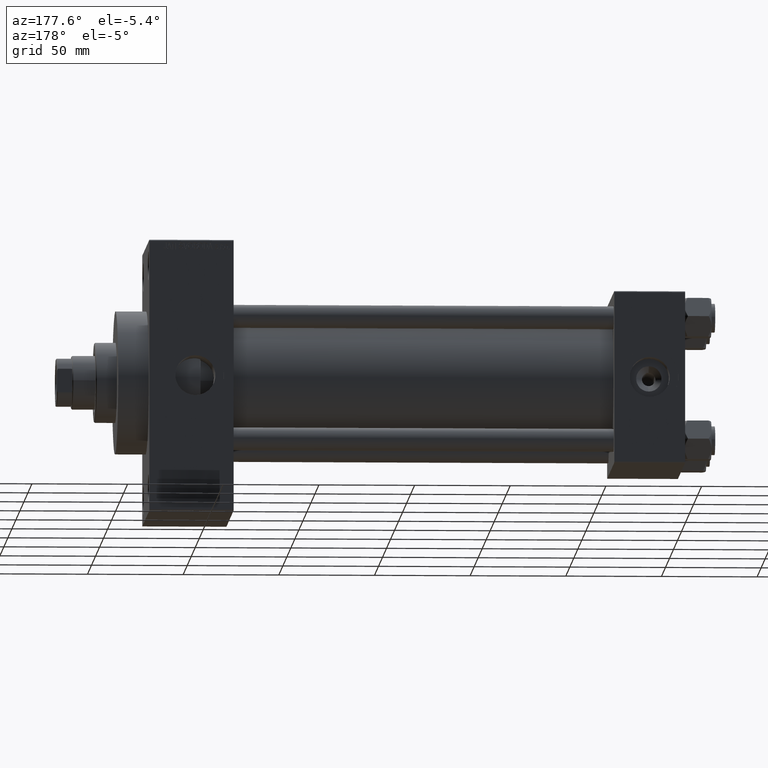
[diagram: clean part render]
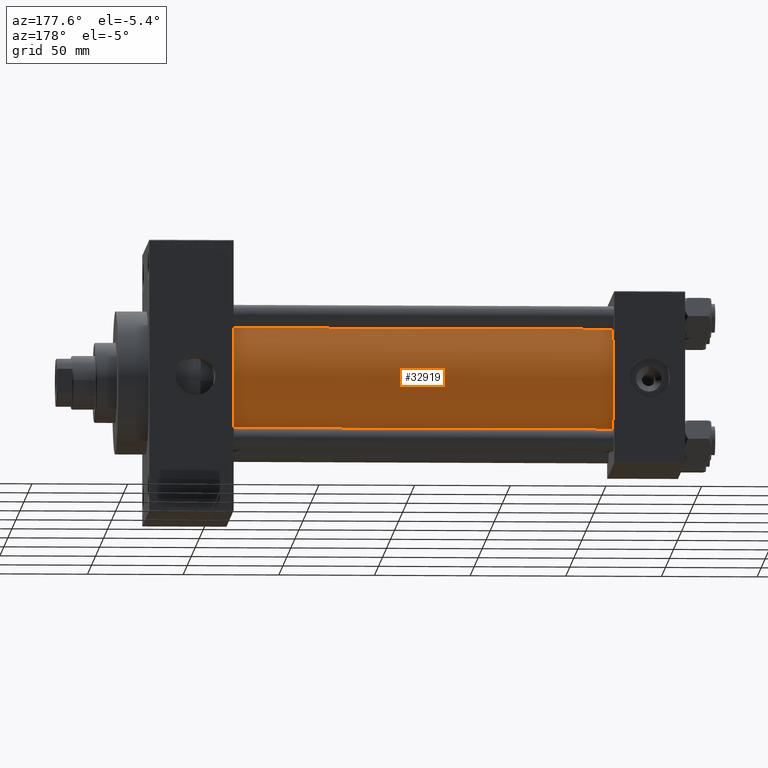
[diagram: same view with one face highlighted and labeled with its STEP entity id]
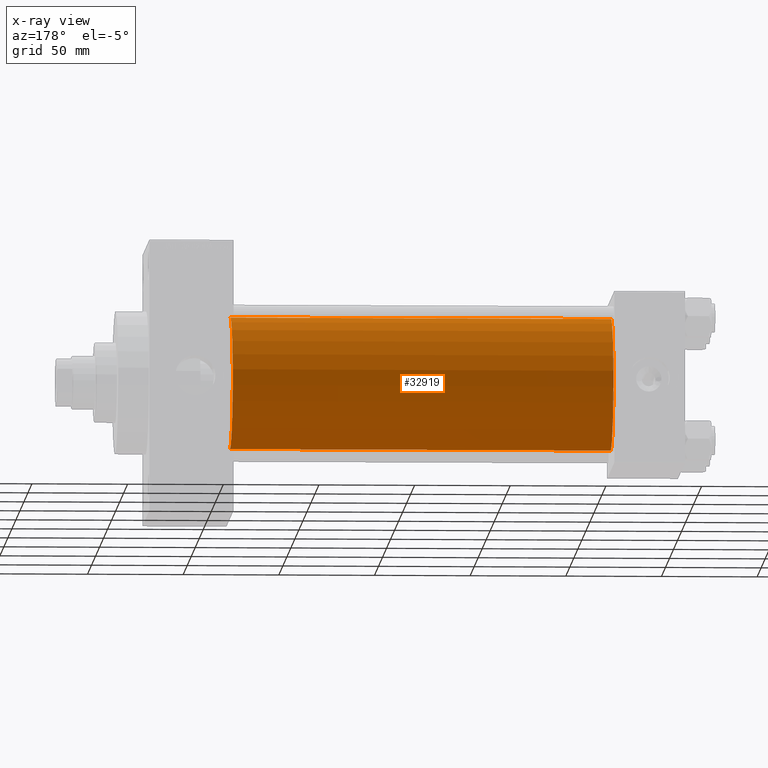
[diagram: x-ray of the same camera — body ghosted, the highlighted face saturated]
A machine part, auxiliary view. The second image highlights one B-rep face of the part: STEP entity #32919.
The next image is the same camera in x-ray: the body ghosted, the highlighted face saturated — about 0% of this face is hidden behind the body in this view.
In plain terms, the highlighted cylindrical surface (partial cylindrical patch) has radius 34.5 mm, axis along (-1, -0, -0).
Its self-contained STEP definition (entity closure, byte-faithful):
#1605 = DIRECTION ( 'NONE',  ( 0.000000000000000000, 0.000000000000000000, 1.000000000000000000 ) ) ;
#1861 = FACE_OUTER_BOUND ( 'NONE', #40286, .T. ) ;
#6982 = VERTEX_POINT ( 'NONE', #32561 ) ;
#7809 = ORIENTED_EDGE ( 'NONE', *, *, #43640, .F. ) ;
#7851 = CIRCLE ( 'NONE', #40625, 34.50000000000000000 ) ;
#9278 = ORIENTED_EDGE ( 'NONE', *, *, #38268, .F. ) ;
#9998 = ORIENTED_EDGE ( 'NONE', *, *, #27727, .T. ) ;
#10160 = LINE ( 'NONE', #17778, #39454 ) ;
#12825 = DIRECTION ( 'NONE',  ( -1.000000000000000000, -0.000000000000000000, -0.000000000000000000 ) ) ;
#13977 = DIRECTION ( 'NONE',  ( -1.000000000000000000, -0.000000000000000000, -0.000000000000000000 ) ) ;
#15154 = CARTESIAN_POINT ( 'NONE',  ( 236.0000000000000284, -2.602085213965210642E-15, 0.000000000000000000 ) ) ;
#17778 = CARTESIAN_POINT ( 'NONE',  ( 236.0000000000000284, -2.602085213965210642E-15, 34.50000000000000000 ) ) ;
#21828 = DIRECTION ( 'NONE',  ( 1.000000000000000000, 0.000000000000000000, 0.000000000000000000 ) ) ;
#22863 = CIRCLE ( 'NONE', #45749, 34.50000000000000000 ) ;
#23156 = DIRECTION ( 'NONE',  ( -1.000000000000000000, -0.000000000000000000, -0.000000000000000000 ) ) ;
#27678 = AXIS2_PLACEMENT_3D ( 'NONE', #44841, #12825, #42201 ) ;
#27727 = EDGE_CURVE ( 'NONE', #35988, #6982, #7851, .T. ) ;
#29226 = DIRECTION ( 'NONE',  ( 0.000000000000000000, 0.000000000000000000, -1.000000000000000000 ) ) ;
#29283 = EDGE_CURVE ( 'NONE', #31665, #35988, #37732, .T. ) ;
#30948 = CYLINDRICAL_SURFACE ( 'NONE', #27678, 34.50000000000000000 ) ;
#31665 = VERTEX_POINT ( 'NONE', #46289 ) ;
#32504 = ORIENTED_EDGE ( 'NONE', *, *, #29283, .T. ) ;
#32561 = CARTESIAN_POINT ( 'NONE',  ( 37.00000000000000711, -2.602085213965210642E-15, 34.50000000000000000 ) ) ;
#32919 = ADVANCED_FACE ( 'NONE', ( #1861 ), #30948, .T. ) ;
#33922 = CARTESIAN_POINT ( 'NONE',  ( 236.0000000000000284, 1.622946243093158675E-15, -34.50000000000000000 ) ) ;
#34305 = DIRECTION ( 'NONE',  ( 1.000000000000000000, -0.000000000000000000, 0.000000000000000000 ) ) ;
#35988 = VERTEX_POINT ( 'NONE', #46357 ) ;
#37732 = LINE ( 'NONE', #33922, #42935 ) ;
#38268 = EDGE_CURVE ( 'NONE', #45387, #6982, #10160, .T. ) ;
#38440 = CARTESIAN_POINT ( 'NONE',  ( 236.0000000000000284, -2.602085213965210642E-15, 34.50000000000000000 ) ) ;
#39454 = VECTOR ( 'NONE', #13977, 1000.000000000000000 ) ;
#40286 = EDGE_LOOP ( 'NONE', ( #7809, #32504, #9998, #9278 ) ) ;
#40625 = AXIS2_PLACEMENT_3D ( 'NONE', #40764, #34305, #1605 ) ;
#40764 = CARTESIAN_POINT ( 'NONE',  ( 37.00000000000000711, -2.602085213965210642E-15, 0.000000000000000000 ) ) ;
#42201 = DIRECTION ( 'NONE',  ( 0.000000000000000000, 0.000000000000000000, 1.000000000000000000 ) ) ;
#42935 = VECTOR ( 'NONE', #23156, 1000.000000000000000 ) ;
#43640 = EDGE_CURVE ( 'NONE', #31665, #45387, #22863, .T. ) ;
#44841 = CARTESIAN_POINT ( 'NONE',  ( 236.0000000000000284, -2.602085213965210642E-15, 0.000000000000000000 ) ) ;
#45387 = VERTEX_POINT ( 'NONE', #38440 ) ;
#45749 = AXIS2_PLACEMENT_3D ( 'NONE', #15154, #21828, #29226 ) ;
#46289 = CARTESIAN_POINT ( 'NONE',  ( 236.0000000000000284, 1.622946243093158675E-15, -34.50000000000000000 ) ) ;
#46357 = CARTESIAN_POINT ( 'NONE',  ( 37.00000000000000711, 1.622946243093158675E-15, -34.50000000000000000 ) ) ;